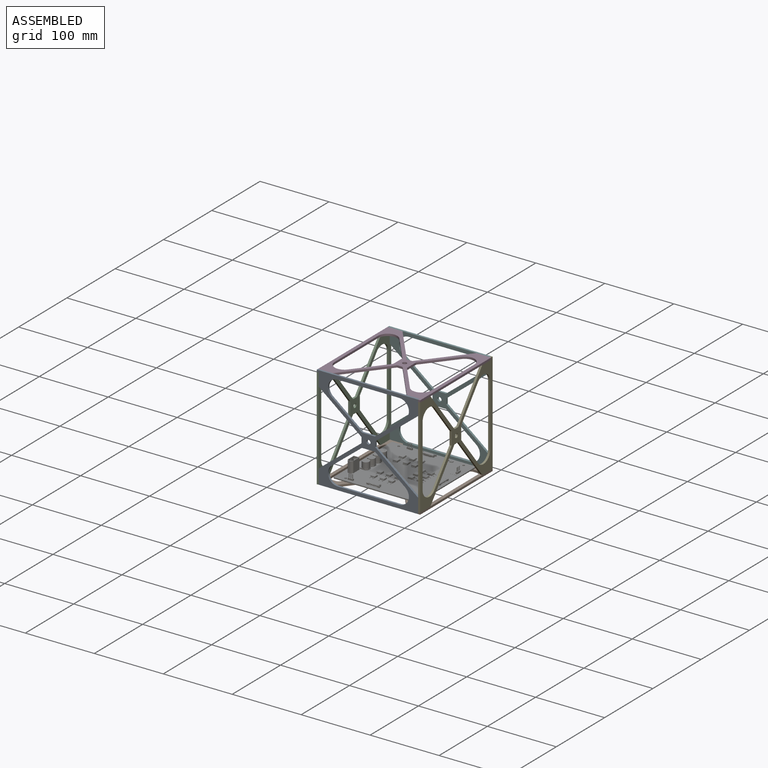
[diagram: assembled view]
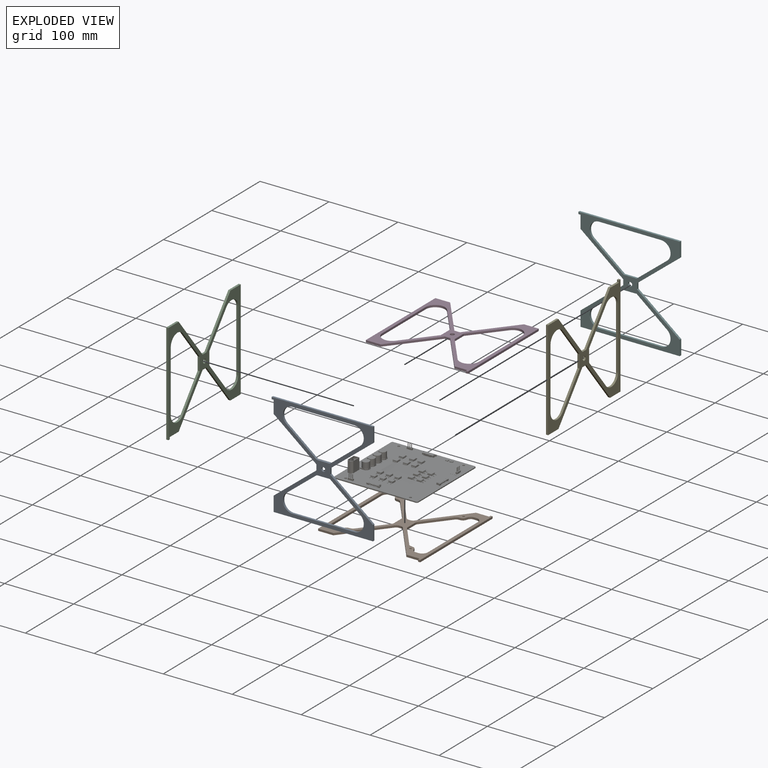
[diagram: exploded view]
GUIDED TOUR — FREECAD ASSEMBLY "assembly"

This assembly has 7 components, labeled P0..P6 below (a component is one placed body or linked part; the same part can appear more than once), held together by 1 modeled joint plus 12 derived contact edges. A joint is a constraint between two components; its type names the relative motion it leaves free:
  CONTACT — a derived adjacency edge — the two components touch in the source model (clearance under 2% of the assembly's diagonal); it is measured from the geometry, not a modeled constraint,
  FASTENED — locks the two components together rigidly (no relative motion).
Axis/direction vectors are unit vectors and 'through' points are millimeter coordinates, both in the assembly's world frame.

MATES
  1. FASTENED [Fixed] "Joint": P1 <-> P6, direction (0.000, 0.000, 1.000) through (47.00, 55.00, 3.00) mm
  2. CONTACT "contact_0_1": P0 <-> P1, contact direction (0.000, 1.000, 0.000) through (72.00, -72.00, 0.00) mm (derived from contact, not a modeled constraint)
  3. CONTACT "contact_0_2": P0 <-> P2, contact direction (-1.000, 0.000, 0.000) through (-72.00, -75.00, 0.00) mm (derived from contact, not a modeled constraint)
  4. CONTACT "contact_0_3": P0 <-> P3, contact direction (0.000, 1.000, 0.000) through (72.00, -75.00, 150.00) mm (derived from contact, not a modeled constraint)
  5. CONTACT "contact_0_4": P0 <-> P4, contact direction (1.000, 0.000, 0.000) through (72.00, -75.00, 1.50) mm (derived from contact, not a modeled constraint)
  6. CONTACT "contact_1_2": P1 <-> P2, contact direction (-1.000, 0.000, 0.000) through (-75.00, -72.00, 3.00) mm (derived from contact, not a modeled constraint)
  7. CONTACT "contact_1_4": P1 <-> P4, contact direction (0.000, 0.000, 1.000) through (72.00, -75.00, 3.00) mm (derived from contact, not a modeled constraint)
  8. CONTACT "contact_1_5": P1 <-> P5, contact direction (0.000, 1.000, 0.000) through (-72.00, 72.00, 0.00) mm (derived from contact, not a modeled constraint)
  9. CONTACT "contact_2_3": P2 <-> P3, contact direction (0.000, 0.000, 1.000) through (-75.00, -73.50, 147.00) mm (derived from contact, not a modeled constraint)
  10. CONTACT "contact_2_5": P2 <-> P5, contact direction (1.000, 0.000, 0.000) through (-75.00, 75.00, 147.00) mm (derived from contact, not a modeled constraint)
  11. CONTACT "contact_3_4": P3 <-> P4, contact direction (0.000, 0.000, -1.000) through (75.00, 72.00, 147.00) mm (derived from contact, not a modeled constraint)
  12. CONTACT "contact_3_5": P3 <-> P5, contact direction (0.000, 1.000, 0.000) through (-75.00, 72.00, 150.00) mm (derived from contact, not a modeled constraint)
  13. CONTACT "contact_4_5": P4 <-> P5, contact direction (-1.000, 0.000, 0.000) through (72.00, 72.00, 150.00) mm (derived from contact, not a modeled constraint)

ASSEMBLY ORDER
  1. P6 — the base component [order verified]
  2. P0 [order verified]
  3. P3 [order verified]
  4. P4 [order verified]
  5. P2 [order verified]
  6. P1 [order verified]
  7. P5 [order verified]
Order-tag legend:
  [order verified] — this step's position reverses a verified removal order: the component was checked to insert without passing through the ones already placed.

Of the 7 components, 1 carries a construction recipe — the FreeCAD feature program (sketches with constraints, then the solid features that consume them) that regenerates the part from scratch, quoted from this document or from the linked companion document it references; the rest are supplied as boundary geometry only. The tour below walks the components in assembly order: each is shown spotlighted twice — in the assembled view, then in the exploded view, where a leader line traces a displaced component back to its assembled socket (components that stay in place when exploded have no leader line; saturated green if recipe-attached, orange if geometry-only; every other component desaturated gray) — followed by its recipe or geometry summary and the mates that hold it.
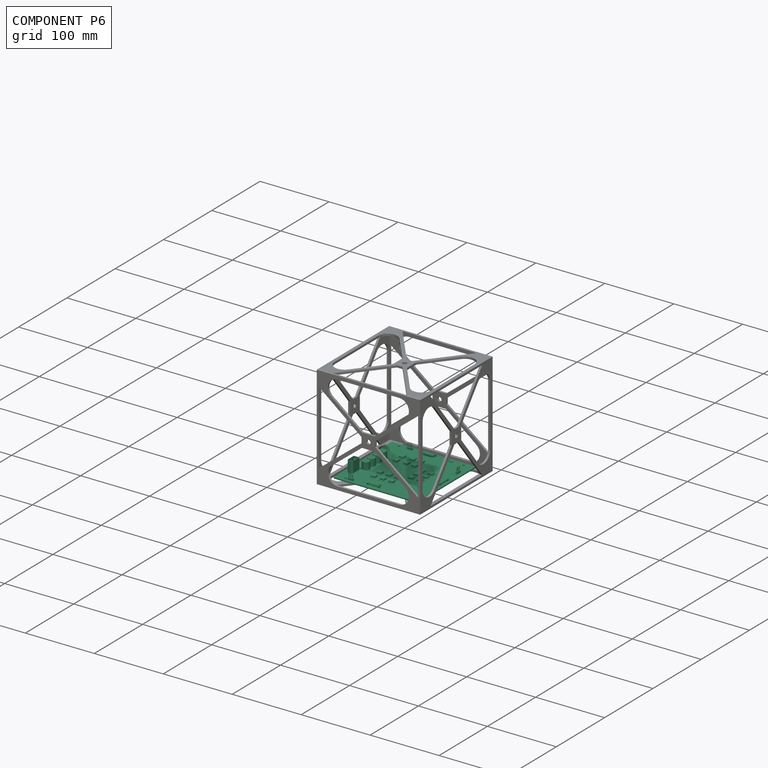
[diagram: component P6 — assembled]
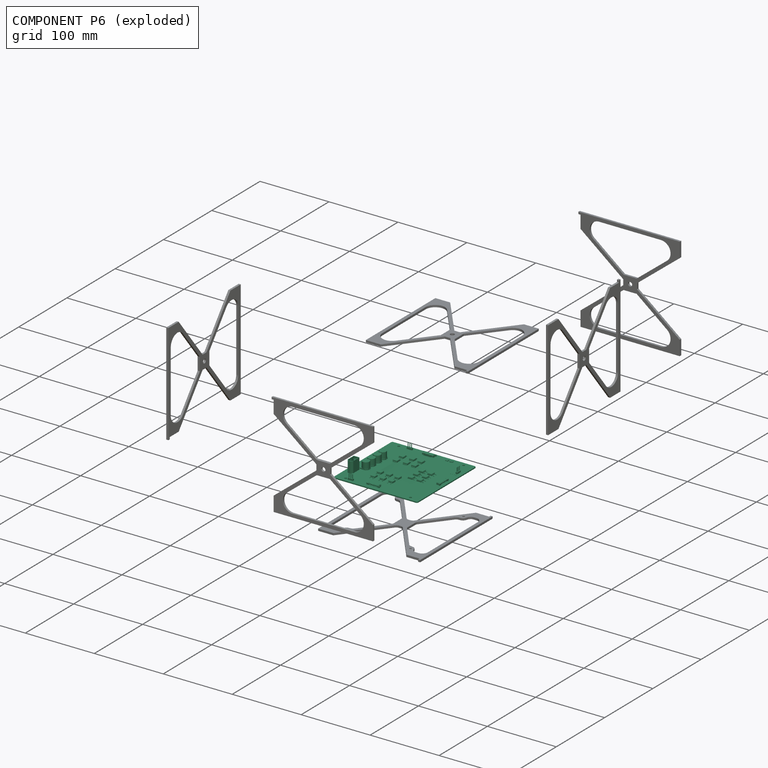
[diagram: component P6 — exploded]
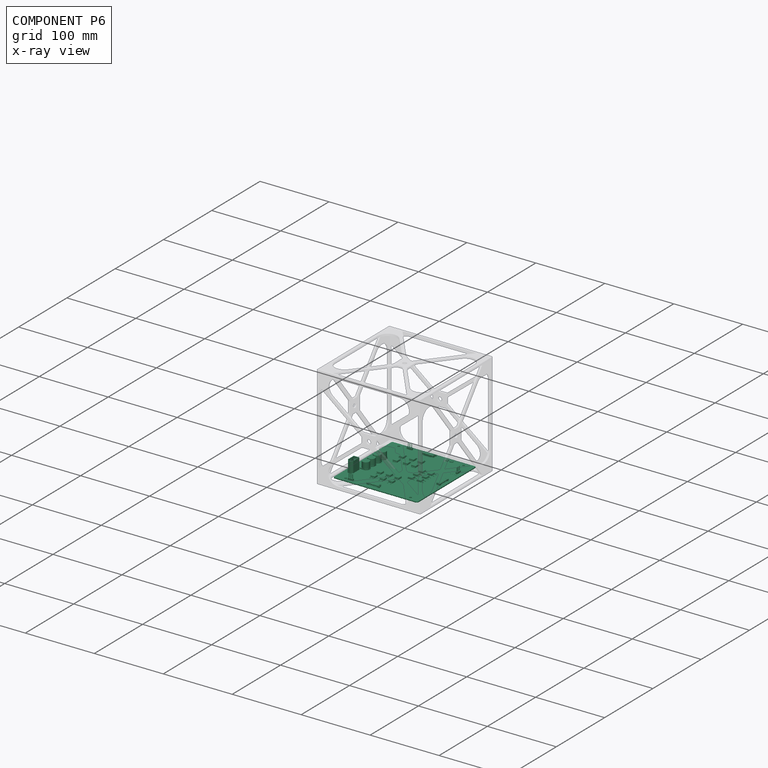
[diagram: component P6 — x-ray view]
COMPONENT P6 — recipe-attached ("motordriverpcb", a linked part whose construction recipe lives in a companion FreeCAD document of the same project; that document's serialized recipe follows).
Held by: FASTENED mate "Joint" to P1.
Construction recipe (the companion document, serialized — sketch geometry with constraints, then the solid features built on it; lengths are millimeters unless a unit is written):

FCSTD DOCUMENT  (FreeCAD 1.0R39109 (Git))
Label: motordriverpcb
License: All rights reserved
LicenseURL: https://en.wikipedia.org/wiki/All_rights_reserved
objects: Part::Feature×31, App::Link×12, App::LinkGroup×6, App::Part×1
note: 31 computed .brp shape members not serialized (recipe doc carries the construction recipe); baked Part::Feature solids carry a one-line shape summary decoded from their .brp

FEATURE [Part::Feature] Solid  label="R_0603_1608Metric"
  shape: bbox 1.6 x 0.8 x 0.45 mm, 26 faces (baked)
FEATURE [Part::Feature] Solid001  label="C_0603_1608Metric"
  shape: bbox 1.6 x 0.8 x 0.8 mm, 28 faces (baked)
FEATURE [Part::Feature] Solid002  label="IPD70P04P4L08ATMA2"
  shape: bbox 6.5 x 2.45 x 10.01 mm, 82 faces (baked)
FEATURE [Part::Feature] Solid003  label="Body"
  shape: bbox 9 x 9 x 0.95 mm, 8 faces (baked)
FEATURE [Part::Feature] Solid004  label="ThermalPin"
  Placement = pos=(-2.35,-2.35,0) rot=(0,0,1;0rad)
  shape: bbox 4.7 x 4.7 x 0.1 mm, 6 faces (baked)
FEATURE [Part::Feature] Compound  label="PinsArrayLR"
  shape: bbox 9.1 x 7.7 x 0.1 mm, 192 faces, 32 solids (baked)
FEATURE [Part::Feature] Compound001  label="PinsArrayTB"
  shape: bbox 7.7 x 9.1 x 0.1 mm, 192 faces, 32 solids (baked)
FEATURE [App::LinkGroup] LinkGroup  label="ATSAME53J18A-MF"
  ElementList = -> [Solid003,Solid004,Compound,Compound001]
  LinkMode = 0
  Placement = pos=(154.028,-90,1.595) rot=(0,0,1;3.92699rad)
FEATURE [Part::Feature] Solid005  label="D_0603_1608Metric"
  shape: bbox 1.6 x 0.87 x 0.66 mm, 39 faces (baked)
FEATURE [Part::Feature] Solid006  label="Body001"
  Placement = pos=(0,0,0.1) rot=(0,0,1;0rad)
  shape: bbox 5.5 x 3.5 x 1 mm, 6 faces (baked)
FEATURE [Part::Feature] Compound002  label="Pins"
  shape: bbox 5.444 x 3.444 x 0.1 mm, 150 faces, 25 solids (baked)
FEATURE [App::LinkGroup] LinkGroup001  label="BQ24133RGYR"
  ElementList = -> [Solid006,Compound002]
  LinkMode = 0
  Placement = pos=(147.103,-113.95,1.595) rot=(0,0,1;1.5708rad)
FEATURE [Part::Feature] Solid007  label="BODY-TSSOP"
  Placement = pos=(0,0,0.68) rot=(1,0,0;1.5708rad)
  shape: bbox 4.402 x 9.702 x 1 mm, 58 faces (baked)
FEATURE [Part::Feature] Solid008  label="LEAD-TSSOP"
  shape: bbox 0.245 x 0.68 x 1 mm, 14 faces (baked)
FEATURE [Part::Feature] Solid009  label="DAP"
  Placement = pos=(0,0,0.13) rot=(1,0,0;1.5708rad)
  shape: bbox 2.75 x 5.23 x 0.15 mm, 14 faces (baked)
FEATURE [App::Link] Link  label="LEAD-TSSOP001"
  ElementCount = 28
  LinkedObject = -> Solid008
  PlacementList = 28 placements: [(-2.575,4.225,0.25),(-2.575,3.575,0.25),(-2.575,2.925,0.25),(-2.575,2.275,0.25),(-2.575,1.625,0.25),(-2.575,0.975,0.25),(-2.575,0.325,0.25),(-2.575,-0.325,0.25),(-2.575,-0.975,0.25),(-2.575,-1.625,0.25),(-2.575,-2.275,0.25),(-2.575,-2.925,0.25),(-2.575,-3.575,0.25),(-2.575,-4.225,0.25),(2.575,-4.225,0.25),(2.575,-3.575,0.25),(2.575,-2.925,0.25),(2.575,-2.275,0.25),(2.575,-1.625,0.25),+9 more]
  ScaleList = (28) [(1,1,1),(1,1,1),(1,1,1),(1,1,1),(1,1,1),(1,1,1),(1,1,1),(1,1,1),(1,1,1),(1,1,1),(1,1,1),(1,1,1),(1,1,1),(1,1,1),(1,1,1),(1,1,1),(1,1,1),(1,1,1),+10 more]
  ShowElement = false
FEATURE [App::LinkGroup] LinkGroup002  label="LM5176PWPR"
  ElementList = -> [Solid007,Link,Solid009]
  LinkMode = 0
  Placement = pos=(122.953,-101.412,1.595) rot=(0,0,-1;1.5708rad)
FEATURE [Part::Feature] Solid010  label="SOT-223"
  shape: bbox 7 x 6.5 x 1.7 mm, 78 faces (baked)
FEATURE [Part::Feature] Compound003  label="TMC4671-LA"
  shape: bbox 10.5 x 0.85 x 6.5 mm, 1121 faces, 79 solids (baked)
FEATURE [Part::Feature] Solid011  label="SW_PUSH_6mm"
  Placement = pos=(163.778,-142.25,1.595) rot=(0,0,1;0rad)
  shape: bbox 7.174 x 6 x 7.8 mm, 105 faces (baked)
FEATURE [Part::Feature] Solid012  label="Body002"
  shape: bbox 4 x 4 x 0.85 mm, 8 faces (baked)
FEATURE [Part::Feature] Solid013  label="ThermalPin001"
  Placement = pos=(-1.2875,-1.2875,0) rot=(0,0,1;0rad)
  shape: bbox 2.575 x 2.575 x 0.1 mm, 6 faces (baked)
FEATURE [Part::Feature] Compound004  label="PinsArrayLR001"
  shape: bbox 4.1 x 2.74 x 0.1 mm, 72 faces, 12 solids (baked)
FEATURE [Part::Feature] Compound005  label="PinsArrayTB001"
  shape: bbox 2.74 x 4.1 x 0.1 mm, 72 faces, 12 solids (baked)
FEATURE [App::LinkGroup] LinkGroup003  label="ATSAMD11D14A-MNT"
  ElementList = -> [Solid012,Solid013,Compound004,Compound005]
  LinkMode = 0
  Placement = pos=(155.578,-136.623,1.595) rot=(0,0,1;3.14159rad)
FEATURE [Part::Feature] Solid014  label="IHLP2525CZER3R3M01"
  Placement = pos=(124.618,-126.23,-0.805) rot=(0,0.707107,0.707107;3.14159rad)
  shape: bbox 7.076 x 6.67 x 2.883 mm, 78 faces (baked)
FEATURE [Part::Feature] Solid015  label="PinHeader_1x03_P2.54mm_Vertical"
  shape: bbox 2.54 x 7.62 x 11.54 mm, 76 faces (baked)
FEATURE [Part::Feature] Solid016  label="Base"
  shape: bbox 10.5 x 10.5 x 1.6 mm, 16 faces (baked)
FEATURE [Part::Feature] Solid017  label="Pin1Fillet"
  shape: bbox 4.3 x 1 x 0.3 mm, 7 faces (baked)
FEATURE [Part::Feature] Solid018  label="Pin2Fillet"
  shape: bbox 4.3 x 1 x 0.3 mm, 7 faces (baked)
FEATURE [Part::Feature] Solid019  label="Fillet"
  shape: bbox 11.04 x 11.04 x 9.4 mm, 5 faces (baked)
FEATURE [App::LinkGroup] LinkGroup004  label="MAL215099001E3"
  ElementList = -> [Solid016,Solid017,Solid018,Solid019]
  LinkMode = 0
FEATURE [Part::Feature] Solid020  label="IPD70P04P4L08ATMA003"
  shape: bbox 6.5 x 2.45 x 10.01 mm, 82 faces (baked)
FEATURE [Part::Feature] Solid021  label="59453-052110ECHLF"
  shape: bbox 4 x 0.9004 x 3.6 mm, 647 faces (baked)
FEATURE [Part::Feature] Solid022  label="1-84952-1"
  shape: bbox 18.93 x 2.56 x 6.54 mm, 621 faces (baked)
FEATURE [Part::Feature] Compound006  label="XT60-M"
  Placement = pos=(120.528,-141.65,-16.085) rot=(0.707107,-0.707107,0;3.14159rad)
  shape: bbox 15.5 x 8.1 x 20.5 mm, 134 faces, 3 solids (baked)
FEATURE [Part::Feature] Solid023  label="motordriver_PCB"
  shape: bbox 122 x 122 x 1.51 mm, 35 faces (baked)
FEATURE [App::Link] Link001  label="R_0603_1608Metric001"
  ElementCount = 110
  LinkedObject = -> Solid
  PlacementList = 110 placements: [(166.828,-140,1.595),(153.078,-114.2,1.595),(191.493,-88.055,1.595),(144.428,-106,1.595),(139.828,-109.8,1.595),(194.203,-68.055,1.595),(120.828,-92.85,1.595),(165.788,-44.81,1.595),(155.528,-57.98,1.595),(153.103,-116.5,1.595),(188.128,-89.38,1.595),(155.528,-130.6,1.595),(146.728,-103.7,1.595),(146.403,-37.64,1.595),(142.128,-114.1,1.595),(125.428,-92.75,1.595),(198.388,-74.61,1.595),+93 more]
  ScaleList = (110) [(1,1,1),(1,1,1),(1,1,1),(1,1,1),(1,1,1),(1,1,1),(1,1,1),(1,1,1),(1,1,1),(1,1,1),(1,1,1),(1,1,1),(1,1,1),(1,1,1),(1,1,1),(1,1,1),(1,1,1),(1,1,1),+92 more]
  ShowElement = false
FEATURE [App::Link] Link002  label="C_0603_1608Metric001"
  ElementCount = 151
  LinkedObject = -> Solid001
  PlacementList = 151 placements: [(158.453,-133.2,1.595),(198.463,-80.93,1.595),(130.052,-75.225,1.595),(109.992,-75.855,1.595),(151.728,-120.9,1.595),(159.631,-98.496,1.595),(165.863,-49.61,1.595),(130.028,-66.1,1.595),(198.028,-128.7,1.595),(110.578,-95.6,1.595),(145.703,-49,1.595),(143.228,-120.4,1.595),(165.813,-40.01,1.595),(146.528,-93.5,1.595),(122.177,-79.15,1.595),(198.953,-118,1.595),(189.403,-68.105,1.595),+134 more]
  ShowElement = false
FEATURE [App::Link] Link003  label="IPD70P04P4L08ATMA004"
  ElementCount = 22
  LinkedObject = -> Solid002
  PlacementList = 22 placements: [(162.083,-117.65,1.995),(128.578,-127.155,1.995),(131.133,-116.26,1.995),(129.278,-139.99,1.995),(158.278,-126.055,1.995),(111.178,-127.555,1.995),(115.358,-109.75,1.995),(121.898,-95.35,-0.485),(157.888,-59.94,-0.485),(186.373,-104.15,-0.485),(173.203,-91.97,-0.485),(173.508,-104.15,-0.485),(146.888,-72.705,-0.485),(157.888,-72.805,-0.485),(168.688,-72.605,-0.485),(172.593,-118.39,-0.485),+6 more]
  ScaleList = (22) [(1,1,1),(1,1,1),(1,1,1),(1,1,1),(1,1,1),(1,1,1),(1,1,1),(1,1,1),(1,1,1),(1,1,1),(1,1,1),(1,1,1),(1,1,1),(1,1,1),(1,1,1),(1,1,1),(1,1,1),(1,1,1),+4 more]
  ShowElement = false
FEATURE [App::Link] Link004  label="D_0603_1608Metric001"
  ElementCount = 15
  LinkedObject = -> Solid005
  PlacementList = 15 placements: [(153.903,-111.812,1.595),(132.464,-79.815,1.595),(182.968,-139.632,1.595),(181.258,-139.632,1.595),(132.464,-78.1,1.595),(150.34,-132.65,1.595),(177.028,-139.762,1.595),(175.915,-69.1,1.595),(143.315,-37.5,1.595),(175.915,-67.44,1.595),(150.34,-137.35,1.595),(178.828,-139.762,1.595),(107.478,-88.3125,1.595),(143.315,-39.2,1.595),(175.228,-139.762,1.595)]
  ScaleList = (15) [(1,1,1),(1,1,1),(1,1,1),(1,1,1),(1,1,1),(1,1,1),(1,1,1),(1,1,1),(1,1,1),(1,1,1),(1,1,1),(1,1,1),(1,1,1),(1,1,1),(1,1,1)]
  ShowElement = false
FEATURE [App::Link] Link005  label="SOT-224"
  ElementCount = 4
  LinkedObject = -> Solid010
  PlacementList = 4 placements: [(105.078,-105,1.595),(196.828,-108.55,1.595),(105.328,-93.5,1.595),(196.728,-123.25,1.595)]
  ScaleList = (4) [(1,1,1),(1,1,1),(1,1,1),(1,1,1)]
  ShowElement = false
FEATURE [App::Link] Link006  label="TMC4671-LA001"
  ElementCount = 3
  LinkedObject = -> Compound003
  PlacementList = 3 placements: [(155.693,-46.23,2.445),(120.087,-71.225,2.445),(188.293,-76.03,2.445)]
  ScaleList = (3) [(1,1,1),(1,1,1),(1,1,1)]
  ShowElement = false
FEATURE [App::Link] Link007  label="PinHeader_1x03_P2.54mm_Vertical001"
  ElementCount = 3
  LinkedObject = -> Solid015
  PlacementList = 3 placements: [(98.4275,-126.6,-0.085),(209.428,-118.66,-0.085),(190.128,-35.9,-0.085)]
  ScaleList = (3) [(1,1,1),(1,1,1),(1,1,1)]
  ShowElement = false
FEATURE [App::Link] Link008  label="MAL215099001E004"
  ElementCount = 4
  LinkedObject = -> LinkGroup004
  PlacementList = 4 placements: [(146.628,-132.9,-0.085),(169.728,-132.8,-0.085),(135.128,-133,-0.085),(158.228,-132.8,-0.085)]
  ScaleList = (4) [(1,1,1),(1,1,1),(1,1,1),(1,1,1)]
  ShowElement = false
FEATURE [App::Link] Link009  label="IPD70P04P4L08ATMA005"
  ElementCount = 3
  LinkedObject = -> Solid020
  PlacementList = 3 placements: [(134.763,-95.35,-0.485),(134.333,-108.36,-0.485),(134.448,-82.72,-0.485)]
  ScaleList = (3) [(1,1,1),(1,1,1),(1,1,1)]
  ShowElement = false
FEATURE [App::Link] Link010  label="59453-052110ECHLF001"
  ElementCount = 2
  LinkedObject = -> Solid021
  PlacementList = 2 placements: [(210.078,-60.14,-0.105),(210.078,-66.34,-0.105)]
  ScaleList = (2) [(1,1,1),(1,1,1)]
  ShowElement = false
FEATURE [App::Link] Link011  label="1-84952-002"
  ElementCount = 3
  LinkedObject = -> Solid022
  PlacementList = 3 placements: [(99.8275,-97.4,-1.405),(209.928,-92.9,-1.405),(154.228,-34.1,-1.405)]
  ScaleList = (3) [(1,1,1),(1,1,1),(1,1,1)]
  ShowElement = false
FEATURE [App::LinkGroup] LinkGroup005  label="motordriver 1"
  ElementList = -> [Link001,Link002,Link003,LinkGroup,Link004,LinkGroup001,LinkGroup002,Link005,Link006,Solid011,LinkGroup003,Solid014,Link007,Link008,Link009,Link010,Link011,Compound006,Solid023]
  LinkMode = 0
FEATURE [App::Part] Part  label="motordriverpcb"
  Group = -> [LinkGroup005]
  Origin = -> Origin
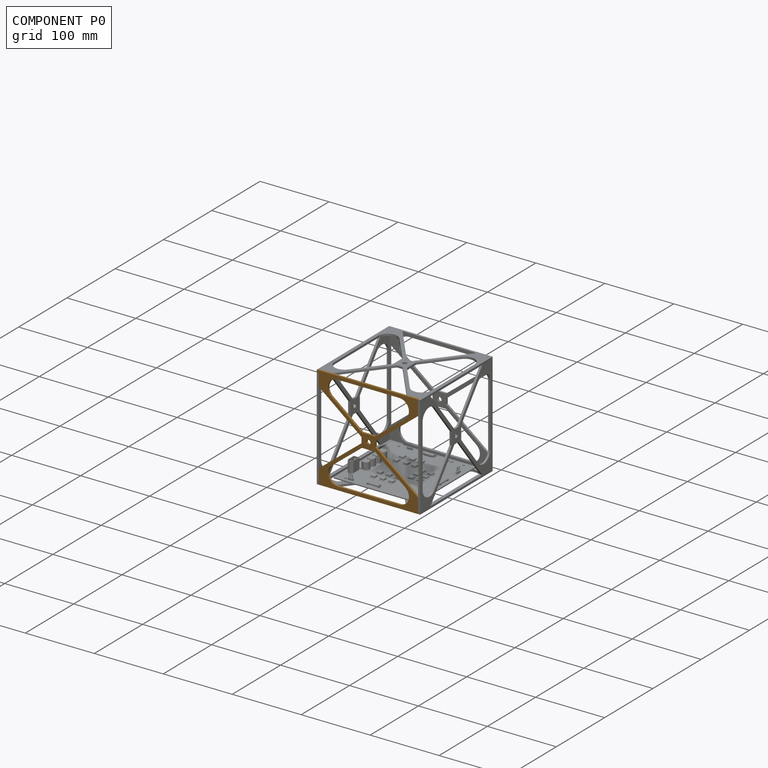
[diagram: component P0 — assembled]
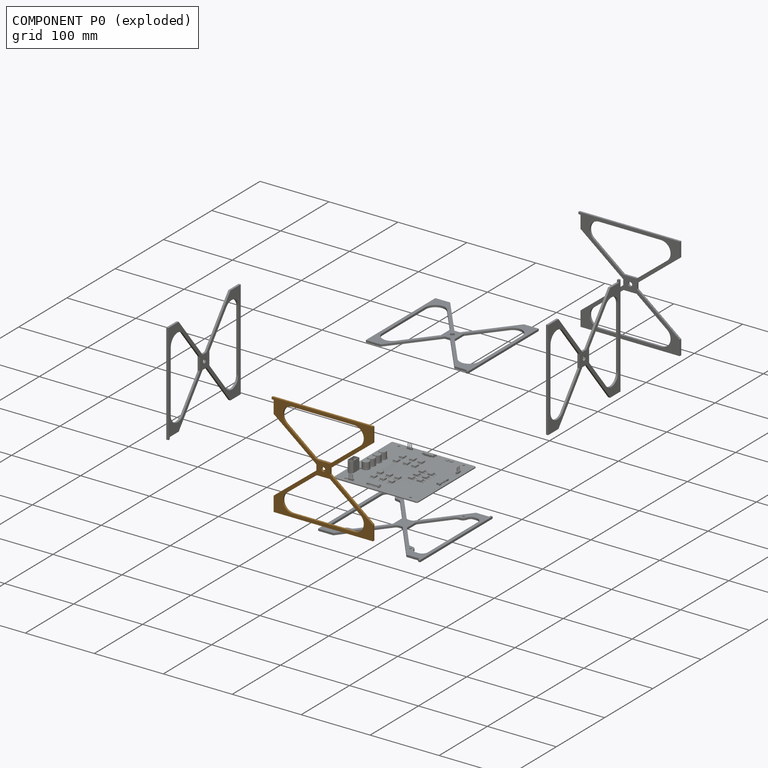
[diagram: component P0 — exploded]
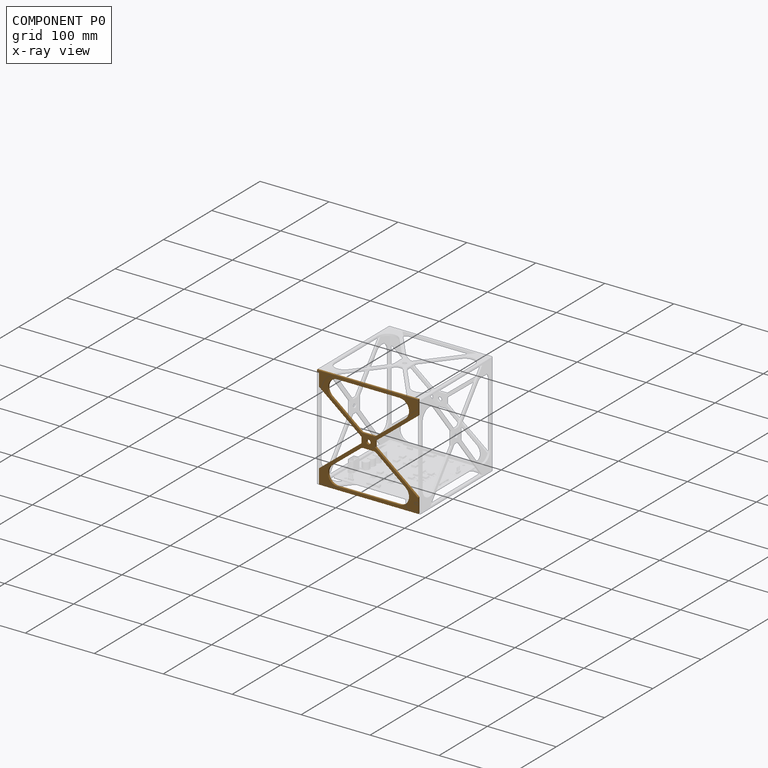
[diagram: component P0 — x-ray view]
COMPONENT P0 — geometry summary ("Body"; no construction recipe available for this part):
  bounding box: 150.0 x 147.0 x 3.0 mm
  tessellated surface: 1,400 triangles
  volume: 13273 mm^3 (20% of its bounding box)
Held by: resting contact with P1 (derived edge); resting contact with P2 (derived edge); resting contact with P3 (derived edge); resting contact with P4 (derived edge).
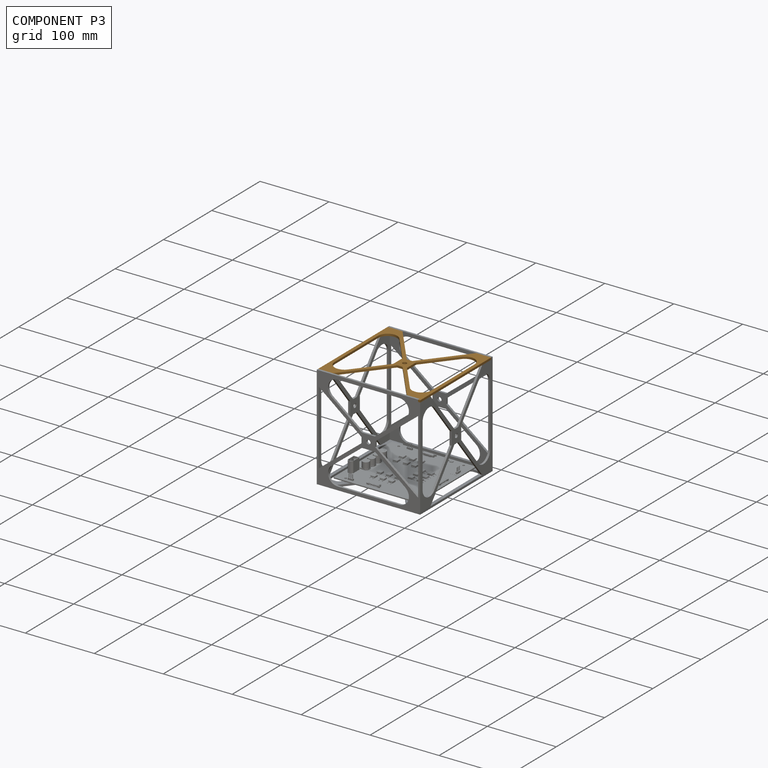
[diagram: component P3 — assembled]
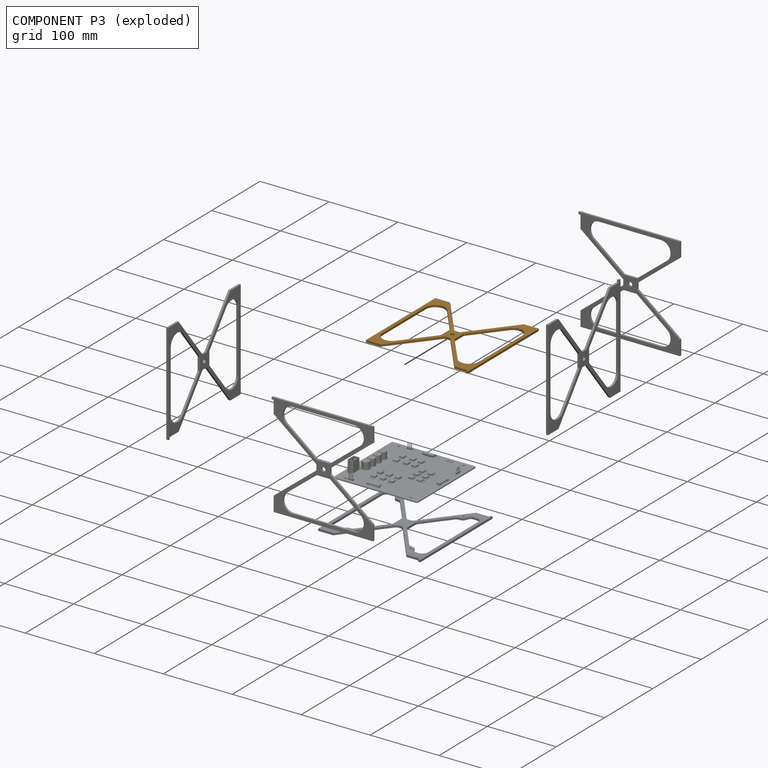
[diagram: component P3 — exploded]
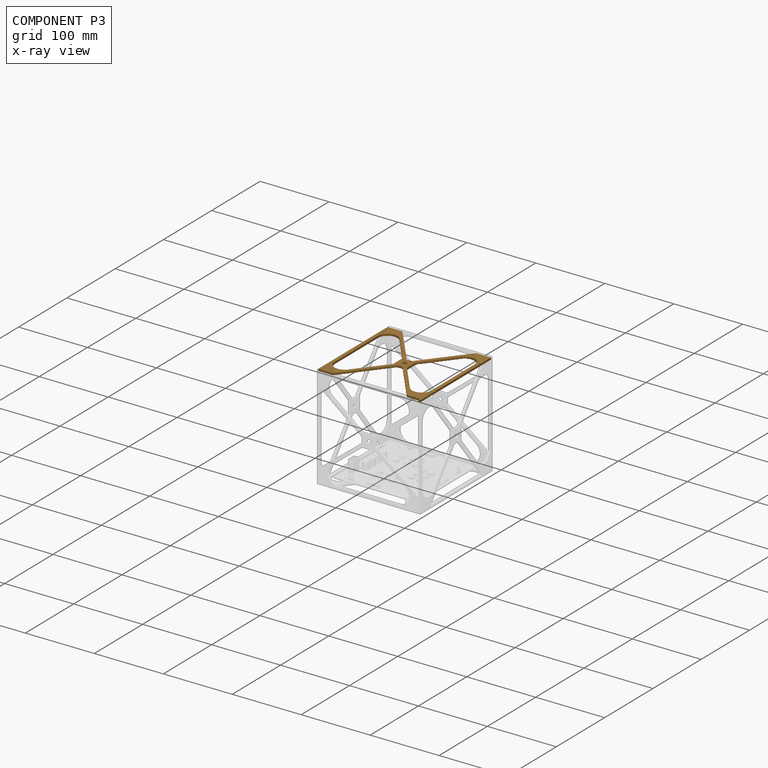
[diagram: component P3 — x-ray view]
COMPONENT P3 — geometry summary ("Body015"; no construction recipe available for this part):
  bounding box: 150.0 x 147.0 x 3.0 mm
  tessellated surface: 1,400 triangles
  volume: 13273 mm^3 (20% of its bounding box)
Held by: resting contact with P0 (derived edge); resting contact with P2 (derived edge); resting contact with P4 (derived edge); resting contact with P5 (derived edge).
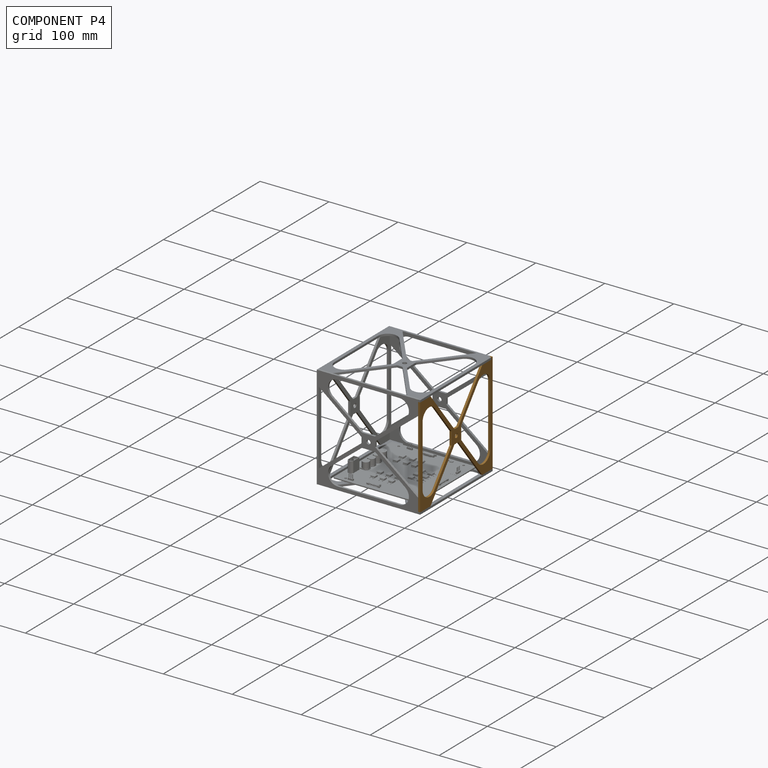
[diagram: component P4 — assembled]
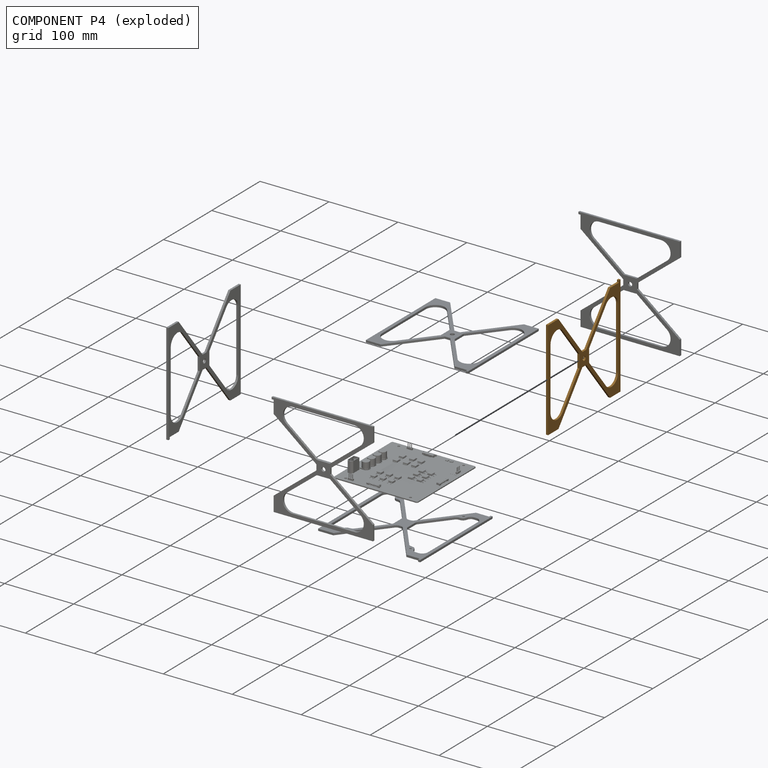
[diagram: component P4 — exploded]
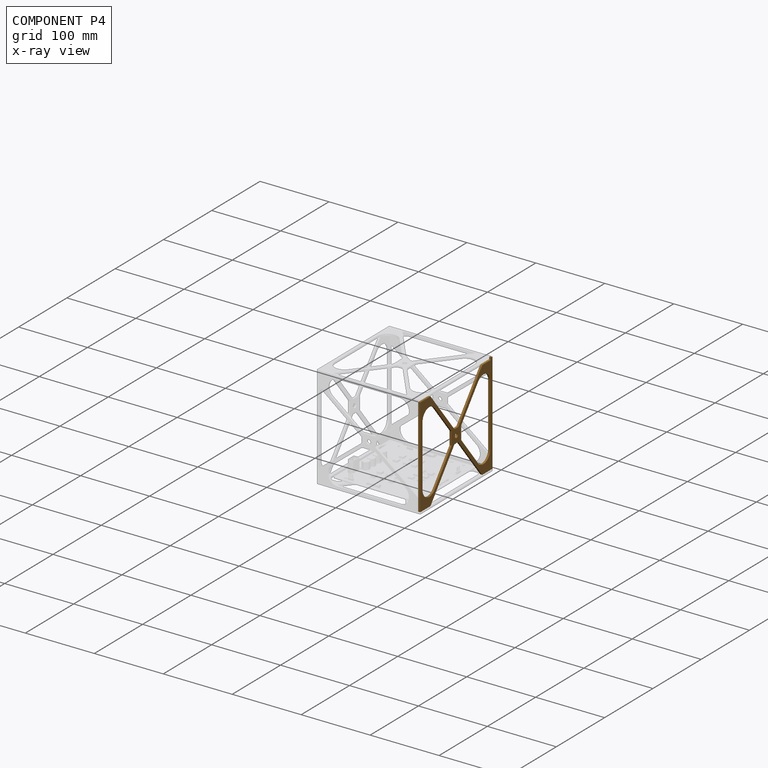
[diagram: component P4 — x-ray view]
COMPONENT P4 — geometry summary ("Body016"; no construction recipe available for this part):
  bounding box: 150.0 x 147.0 x 3.0 mm
  tessellated surface: 1,400 triangles
  volume: 13273 mm^3 (20% of its bounding box)
Held by: resting contact with P0 (derived edge); resting contact with P1 (derived edge); resting contact with P3 (derived edge); resting contact with P5 (derived edge).
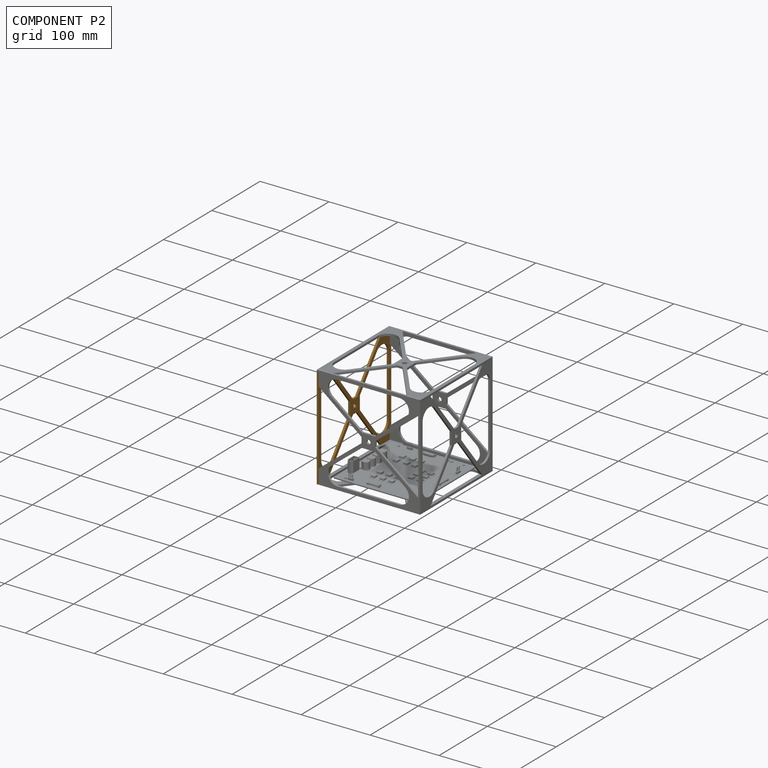
[diagram: component P2 — assembled]
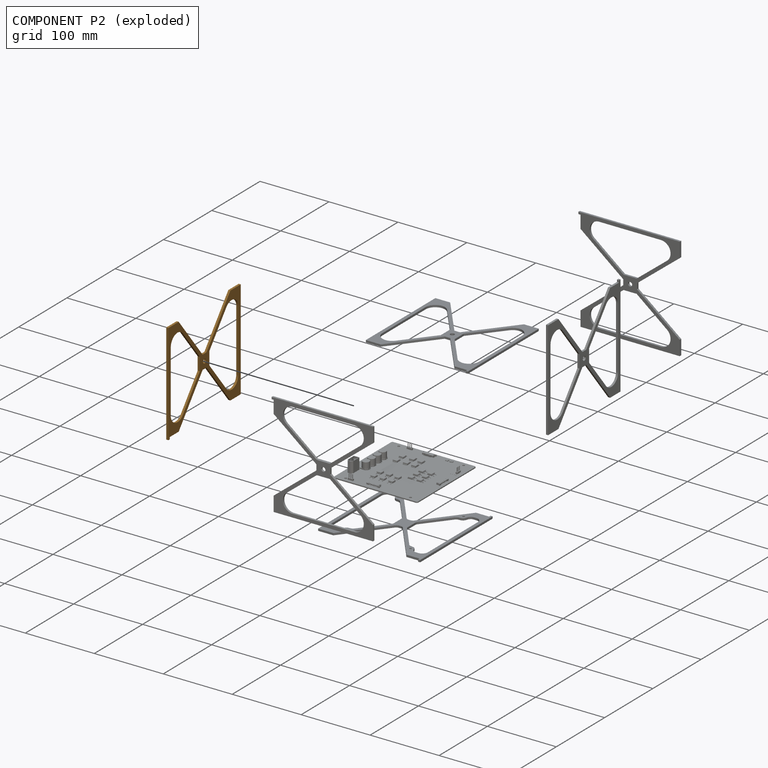
[diagram: component P2 — exploded]
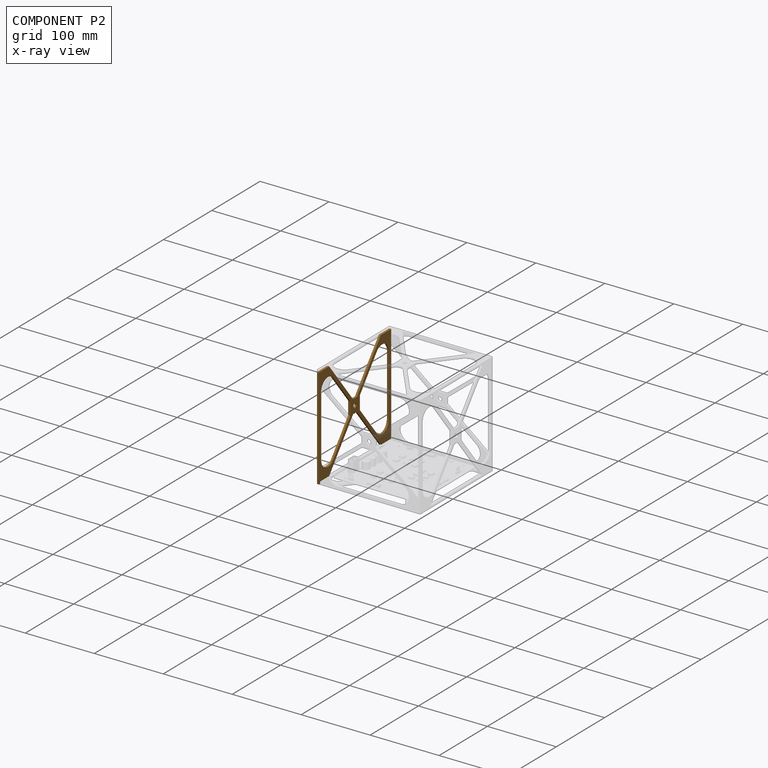
[diagram: component P2 — x-ray view]
COMPONENT P2 — geometry summary ("Body014"; no construction recipe available for this part):
  bounding box: 150.0 x 147.0 x 3.0 mm
  tessellated surface: 1,400 triangles
  volume: 13273 mm^3 (20% of its bounding box)
Held by: resting contact with P0 (derived edge); resting contact with P1 (derived edge); resting contact with P3 (derived edge); resting contact with P5 (derived edge).
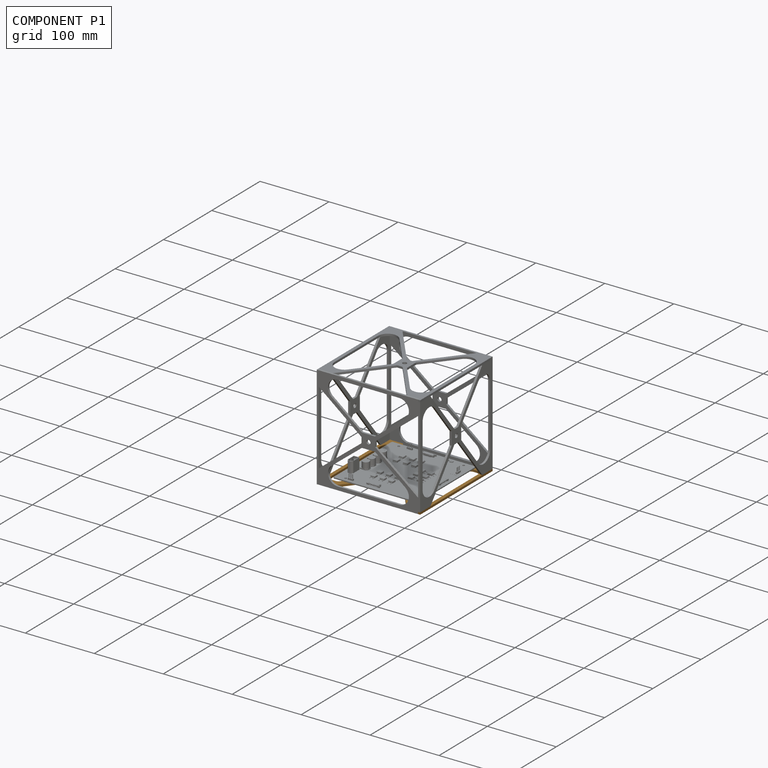
[diagram: component P1 — assembled]
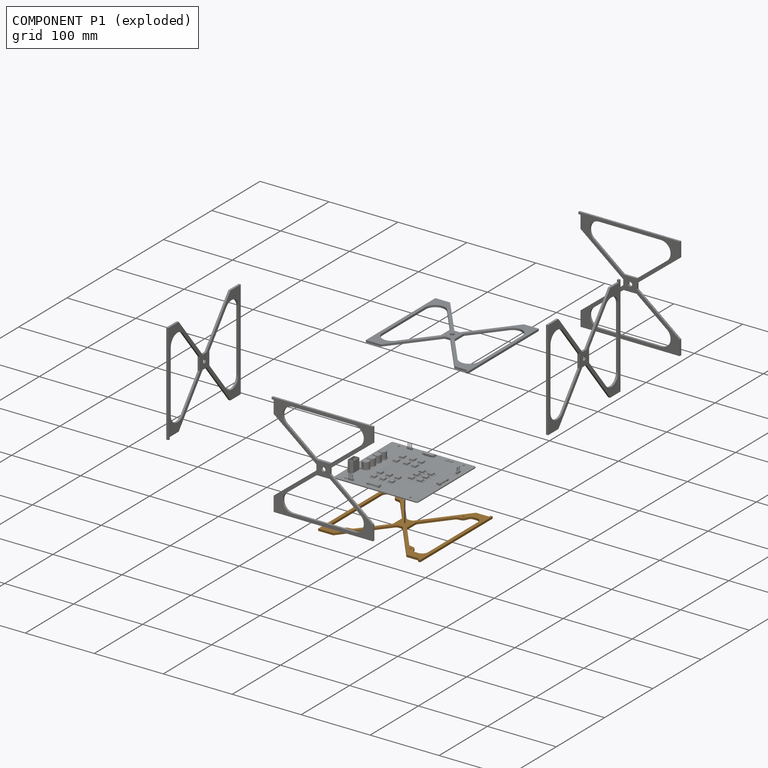
[diagram: component P1 — exploded]
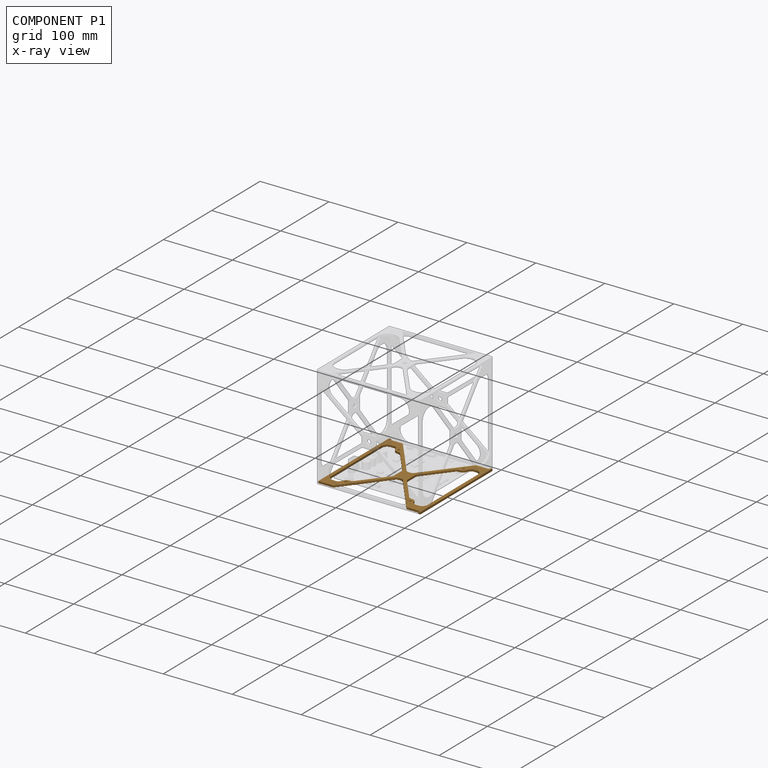
[diagram: component P1 — x-ray view]
COMPONENT P1 — geometry summary ("Body007"; no construction recipe available for this part):
  bounding box: 150.0 x 150.0 x 3.0 mm
  tessellated surface: 3,964 triangles
  volume: 13460 mm^3 (20% of its bounding box)
  symmetry: 2-fold rotationally symmetric about the y axis; mirror-symmetric across its x mid-plane, z mid-plane
Held by: FASTENED mate "Joint" to P6; resting contact with P0 (derived edge); resting contact with P2 (derived edge); resting contact with P4 (derived edge); resting contact with P5 (derived edge).
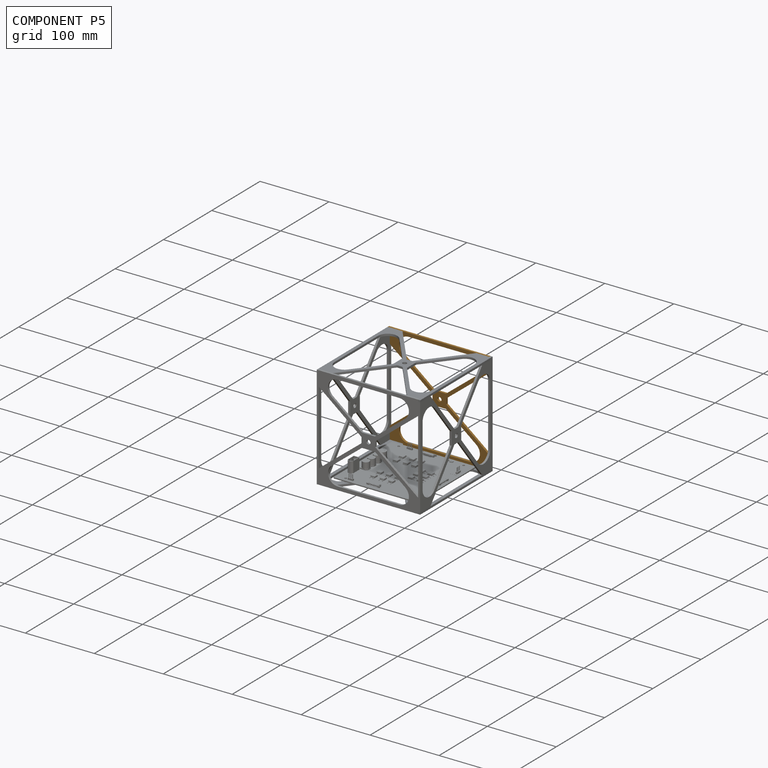
[diagram: component P5 — assembled]
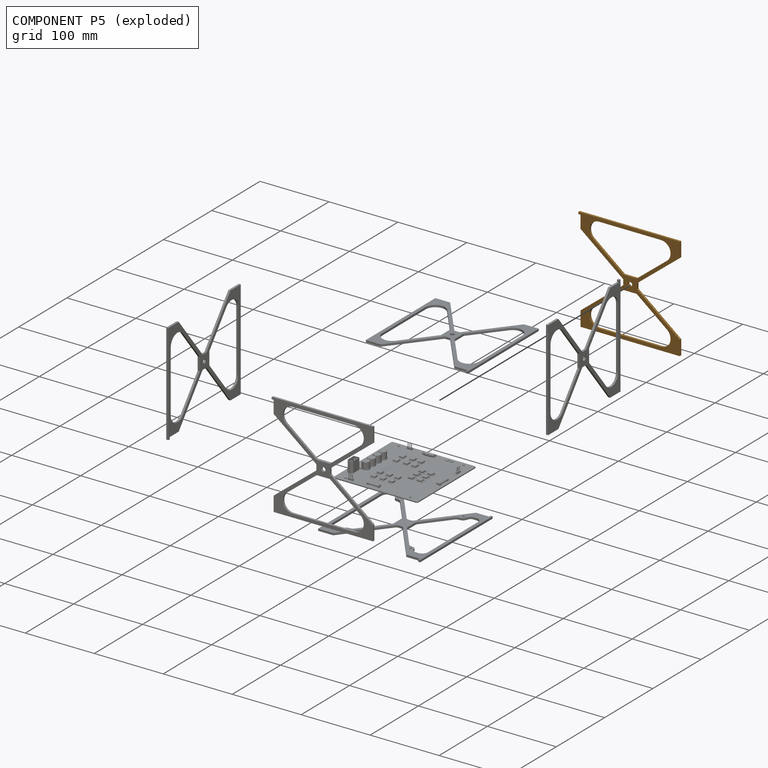
[diagram: component P5 — exploded]
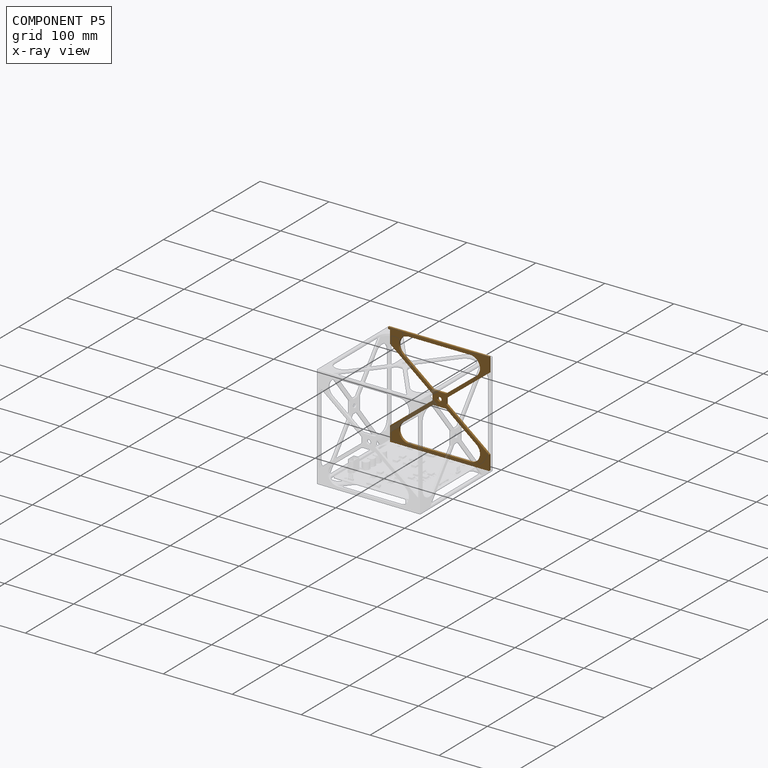
[diagram: component P5 — x-ray view]
COMPONENT P5 — geometry summary ("Body017"; no construction recipe available for this part):
  bounding box: 150.0 x 147.0 x 3.0 mm
  tessellated surface: 1,400 triangles
  volume: 13273 mm^3 (20% of its bounding box)
Held by: resting contact with P1 (derived edge); resting contact with P2 (derived edge); resting contact with P3 (derived edge); resting contact with P4 (derived edge).
PROVENANCE & LICENSES
Assembly and component geometry: a FreeCAD (.FCStd) document from a public repository crawl; components, placements and joints were extracted with FreeCAD and each solid tessellated.
Construction recipes: the document's own serialized feature recipes (and, for linked parts, the recipes of companion documents from the same project).
License: mit.
Joints: native FreeCAD joints and A2plus constraints are mapped to standard mate types; edges marked 'derived from contact' connect touching components and are measured from the geometry, not modeled.
Verification: 1 of this assembly's 7 components carries a construction recipe (1 from linked companion documents in the same project); the rest are geometry-only. Every component's tessellation passed the extraction mesh gates (mesh-volume checksum against the B-rep where available, bounding-box inflation <= 2%).
Renders: orthographic iso camera (az 35 / el 25); the floor grid conveys scale (grid pitch printed in each image; no ruler). In the exploded view each component is displaced by its stored offset vector: the offsets alone carry the explosion direction (mate normal/axis signs are not orientation cues and do not encode it), and separation distances are assigned per mate-chain, not proportionally to assembly-order depth.
